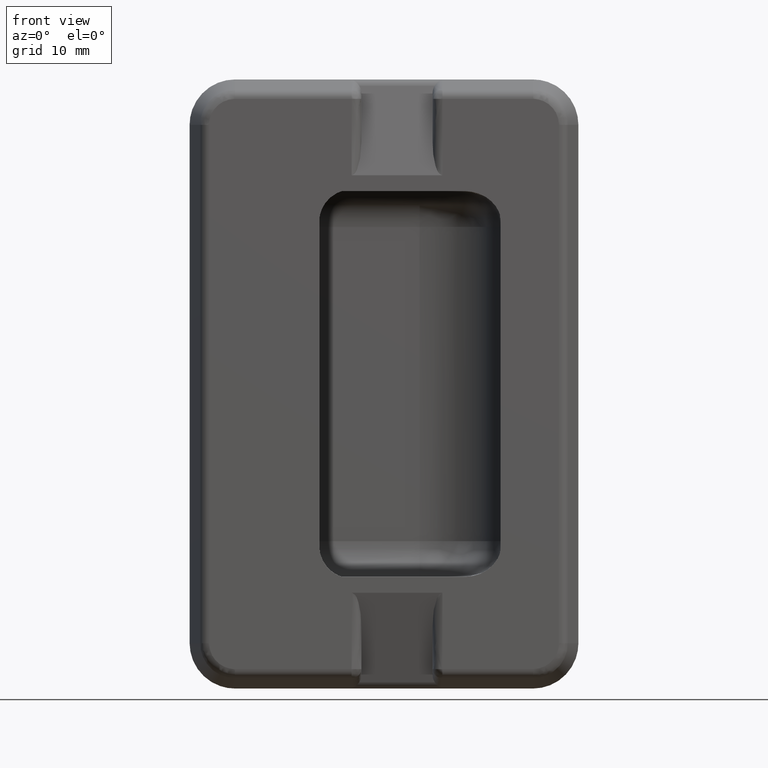
[diagram: clean part render]
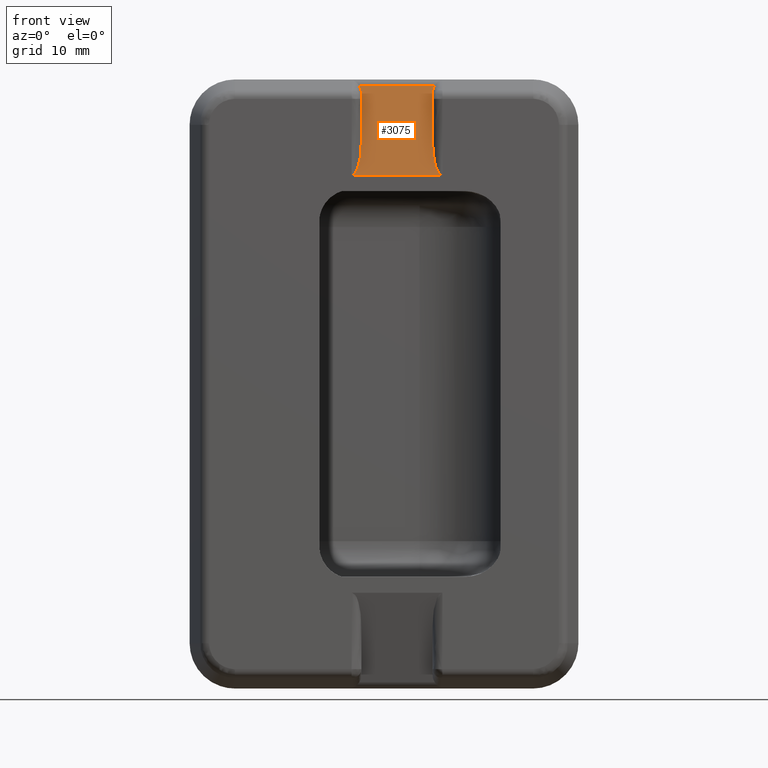
[diagram: same view with one face highlighted and labeled with its STEP entity id]
A machine part, front view. The second image highlights one B-rep face of the part: STEP entity #3075.
In plain terms, the highlighted face is a freeform B-spline surface patch.
Its self-contained STEP definition (entity closure, byte-faithful):
#1856=CARTESIAN_POINT('',(26.500000000000000,-1.773397221694855,44.894069288632103));
#1857=VERTEX_POINT('',#1856);
#1863=CARTESIAN_POINT('',(26.176818338671200,-1.439066771143242,46.031486556192512));
#1864=VERTEX_POINT('',#1863);
#1865=CARTESIAN_POINT('',(26.176818338671200,-1.439066771143246,46.031486556192519));
#1866=CARTESIAN_POINT('',(26.500000000000004,-1.586049552791645,45.531440109316044));
#1867=CARTESIAN_POINT('',(26.500000000000000,-1.773397221694868,44.894069288632103));
#1875=(BOUNDED_CURVE()B_SPLINE_CURVE(2,(#1865,#1866,#1867),.UNSPECIFIED.,.F.,.U.)CURVE()GEOMETRIC_REPRESENTATION_ITEM()QUASI_UNIFORM_CURVE()RATIONAL_B_SPLINE_CURVE((1.0,0.944601915918653,1.0))REPRESENTATION_ITEM(''));
#1876=EDGE_CURVE('',#1864,#1857,#1875,.T.);
#1915=CARTESIAN_POINT('',(37.823181661328803,-1.439066771143242,46.031486556192512));
#1916=VERTEX_POINT('',#1915);
#1938=CARTESIAN_POINT('',(37.823181661328803,-1.439066771143242,46.031486556192512));
#1939=CARTESIAN_POINT('',(26.176818338671200,-1.439066771143242,46.031486556192512));
#1940=QUASI_UNIFORM_CURVE('',1,(#1938,#1939),.UNSPECIFIED.,.F.,.U.);
#1941=EDGE_CURVE('',#1916,#1864,#1940,.T.);
#2039=CARTESIAN_POINT('',(37.500000000000000,-1.773397221694850,44.894069288632153));
#2040=VERTEX_POINT('',#2039);
#2041=CARTESIAN_POINT('',(37.500000000000000,-1.773397221694850,44.894069288632153));
#2042=CARTESIAN_POINT('',(37.500000000000000,-1.586049552791642,45.531440109316030));
#2043=CARTESIAN_POINT('',(37.823181661328789,-1.439066771143245,46.031486556192512));
#2051=(BOUNDED_CURVE()B_SPLINE_CURVE(2,(#2041,#2042,#2043),.UNSPECIFIED.,.F.,.U.)CURVE()GEOMETRIC_REPRESENTATION_ITEM()QUASI_UNIFORM_CURVE()RATIONAL_B_SPLINE_CURVE((1.0,0.944601915918590,1.0))REPRESENTATION_ITEM(''));
#2052=EDGE_CURVE('',#2040,#1916,#2051,.T.);
#2076=CARTESIAN_POINT('',(26.500000000000000,-4.0,37.318999641629603));
#2077=VERTEX_POINT('',#2076);
#2078=CARTESIAN_POINT('',(25.0,-5.500000000000000,32.215887141629537));
#2079=VERTEX_POINT('',#2078);
#2080=CARTESIAN_POINT('',(26.500000000000000,-4.0,37.318999641629603));
#2081=CARTESIAN_POINT('',(26.500000000000014,-5.500000000000000,32.215887141629565));
#2082=CARTESIAN_POINT('',(25.0,-5.500000000000000,32.215887141629572));
#2090=(BOUNDED_CURVE()B_SPLINE_CURVE(2,(#2080,#2081,#2082),.UNSPECIFIED.,.F.,.U.)CURVE()GEOMETRIC_REPRESENTATION_ITEM()QUASI_UNIFORM_CURVE()RATIONAL_B_SPLINE_CURVE((1.0,0.707106781186547,1.0))REPRESENTATION_ITEM(''));
#2091=EDGE_CURVE('',#2077,#2079,#2090,.T.);
#2177=CARTESIAN_POINT('',(39.0,-5.500000000000000,32.215887141629537));
#2178=VERTEX_POINT('',#2177);
#2179=CARTESIAN_POINT('',(37.500000000000000,-4.0,37.318999641629603));
#2180=VERTEX_POINT('',#2179);
#2181=CARTESIAN_POINT('',(39.0,-5.500000000000000,32.215887141629572));
#2182=CARTESIAN_POINT('',(37.500000000000000,-5.500000000000000,32.215887141629572));
#2183=CARTESIAN_POINT('',(37.500000000000000,-4.0,37.318999641629603));
#2191=(BOUNDED_CURVE()B_SPLINE_CURVE(2,(#2181,#2182,#2183),.UNSPECIFIED.,.F.,.U.)CURVE()GEOMETRIC_REPRESENTATION_ITEM()QUASI_UNIFORM_CURVE()RATIONAL_B_SPLINE_CURVE((1.0,0.707106781186548,1.0))REPRESENTATION_ITEM(''));
#2192=EDGE_CURVE('',#2178,#2180,#2191,.T.);
#3031=CARTESIAN_POINT('',(37.500000000000000,-4.0,37.318999641629603));
#3032=CARTESIAN_POINT('',(37.500000000000000,-1.773397221694850,44.894069288632153));
#3033=QUASI_UNIFORM_CURVE('',1,(#3031,#3032),.UNSPECIFIED.,.F.,.U.);
#3034=EDGE_CURVE('',#2180,#2040,#3033,.T.);
#3046=CARTESIAN_POINT('',(26.500000000000000,-4.0,37.318999641629603));
#3047=CARTESIAN_POINT('',(26.500000000000000,-1.773397221694855,44.894069288632103));
#3048=QUASI_UNIFORM_CURVE('',1,(#3046,#3047),.UNSPECIFIED.,.F.,.U.);
#3049=EDGE_CURVE('',#2077,#1857,#3048,.T.);
#3056=CARTESIAN_POINT('',(24.300700027134720,-5.702843111335759,31.525799663631950));
#3057=CARTESIAN_POINT('',(24.300700027134720,-1.236223078886319,46.721576010527450));
#3058=CARTESIAN_POINT('',(39.699300348374543,-5.702843111335760,31.525799663631950));
#3059=CARTESIAN_POINT('',(39.699300348374543,-1.236223078886319,46.721576010527450));
#3060=B_SPLINE_SURFACE_WITH_KNOTS('',1,1,((#3056,#3058),(#3057,#3059)),.UNSPECIFIED.,.F.,.F.,.U.,(2,2),(2,2),(0.0,15.838633567929630),(0.0,15.398600321239829),.UNSPECIFIED.);
#3061=ORIENTED_EDGE('',*,*,#2052,.T.);
#3062=ORIENTED_EDGE('',*,*,#1941,.T.);
#3063=ORIENTED_EDGE('',*,*,#1876,.T.);
#3064=ORIENTED_EDGE('',*,*,#3049,.F.);
#3065=ORIENTED_EDGE('',*,*,#2091,.T.);
#3066=CARTESIAN_POINT('',(25.0,-5.500000000000000,32.215887141629537));
#3067=CARTESIAN_POINT('',(39.0,-5.500000000000000,32.215887141629537));
#3068=QUASI_UNIFORM_CURVE('',1,(#3066,#3067),.UNSPECIFIED.,.F.,.U.);
#3069=EDGE_CURVE('',#2079,#2178,#3068,.T.);
#3070=ORIENTED_EDGE('',*,*,#3069,.T.);
#3071=ORIENTED_EDGE('',*,*,#2192,.T.);
#3072=ORIENTED_EDGE('',*,*,#3034,.T.);
#3073=EDGE_LOOP('',(#3061,#3062,#3063,#3064,#3065,#3070,#3071,#3072));
#3074=FACE_OUTER_BOUND('',#3073,.T.);
#3075=ADVANCED_FACE('',(#3074),#3060,.F.);